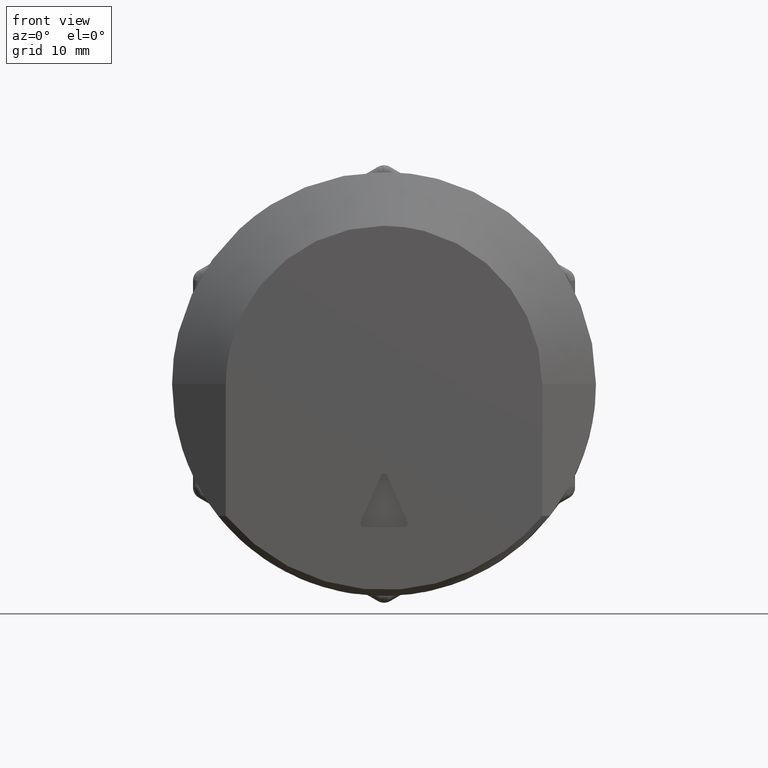
[diagram: clean part render]
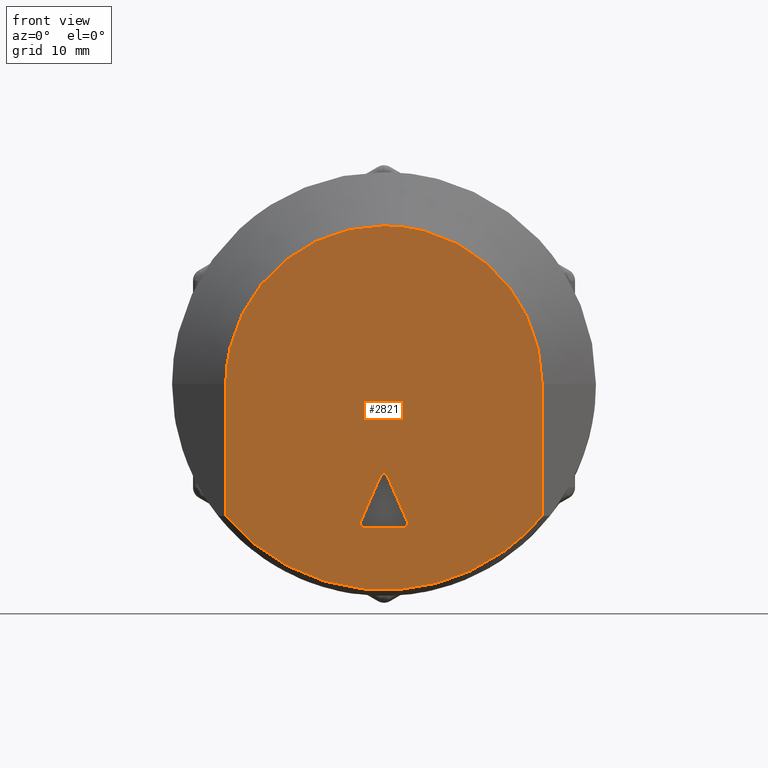
[diagram: same view with one face highlighted and labeled with its STEP entity id]
A machine part, front view. The second image highlights one B-rep face of the part: STEP entity #2821.
In plain terms, the highlighted face is a freeform B-spline surface patch.
Its self-contained STEP definition (entity closure, byte-faithful):
#2116=CARTESIAN_POINT('',(-9.299999999999999,13.250000000000000,-11.045361017187220));
#2117=VERTEX_POINT('',#2116);
#2126=CARTESIAN_POINT('',(-9.299999999999999,-13.250000000000000,-11.045361017187220));
#2127=VERTEX_POINT('',#2126);
#2135=CARTESIAN_POINT('',(-9.299999999999999,13.250000000000000,-11.045361017187220));
#2136=CARTESIAN_POINT('',(-9.300000000000003,12.569840543822110,-11.861449888856640));
#2137=CARTESIAN_POINT('',(-9.299999999999924,11.365986215028711,-13.060515676465720));
#2138=CARTESIAN_POINT('',(-9.300000000000098,9.369378172704799,-14.535890388570630));
#2139=CARTESIAN_POINT('',(-9.299999999999969,7.582760580092833,-15.542820916187020));
#2140=CARTESIAN_POINT('',(-9.300000000000015,5.614661896907975,-16.351895021904681));
#2141=CARTESIAN_POINT('',(-9.299999999999953,3.261530308551539,-17.012689585099739));
#2142=CARTESIAN_POINT('',(-9.300000000000122,0.434784939660100,-17.343060838527510));
#2143=CARTESIAN_POINT('',(-9.299999999999770,-2.560401974944150,-17.137710305447801));
#2144=CARTESIAN_POINT('',(-9.300000000000285,-5.017670287108514,-16.555382089036978));
#2145=CARTESIAN_POINT('',(-9.299999999999766,-7.154540982225449,-15.744520734324119));
#2146=CARTESIAN_POINT('',(-9.300000000000015,-8.863410294077530,-14.842113562978660));
#2147=CARTESIAN_POINT('',(-9.300000000000418,-11.043246982622200,-13.354864705123230));
#2148=CARTESIAN_POINT('',(-9.299999999999468,-12.393617321307030,-12.073169467746521));
#2149=CARTESIAN_POINT('',(-9.299999999999999,-13.250000000000000,-11.045361017187220));
#2150=B_SPLINE_CURVE_WITH_KNOTS('',3,(#2135,#2136,#2137,#2138,#2139,#2140,#2141,#2142,#2143,#2144,#2145,#2146,#2147,#2148,#2149),.UNSPECIFIED.,.F.,.U.,(4,1,1,1,1,1,1,1,1,1,1,1,4),(0.000000060714378,3.187070787264815,5.075743616284203,7.436555689923441,9.325207221906190,11.449936933231200,14.755100381473950,17.824124973170161,20.421013347742790,22.309665651849880,24.670489110627969,26.205008367933502,30.218385545113989),.UNSPECIFIED.);
#2151=EDGE_CURVE('',#2117,#2127,#2150,.T.);
#2243=CARTESIAN_POINT('',(-9.299999999999999,-0.275008526427933,-7.680123770529931));
#2244=VERTEX_POINT('',#2243);
#2245=CARTESIAN_POINT('',(-9.299999999999999,0.275008788728149,-7.680124372275680));
#2246=VERTEX_POINT('',#2245);
#2247=CARTESIAN_POINT('',(-9.299999999999999,-0.275008526427933,-7.680123770529931));
#2248=CARTESIAN_POINT('',(-9.300000000000008,-0.257669547557293,-7.640244585051421));
#2249=CARTESIAN_POINT('',(-9.300000000000001,-0.200914183203180,-7.562180599817098));
#2250=CARTESIAN_POINT('',(-9.299999999999995,-0.080930717936831,-7.501050208112583));
#2251=CARTESIAN_POINT('',(-9.299999999999931,0.062777922825498,-7.495813041218934));
#2252=CARTESIAN_POINT('',(-9.300000000000198,0.193308749133929,-7.553630754202930));
#2253=CARTESIAN_POINT('',(-9.299999999999740,0.256243360243274,-7.636910104583244));
#2254=CARTESIAN_POINT('',(-9.299999999999999,0.275008788728149,-7.680124372275680));
#2255=B_SPLINE_CURVE_WITH_KNOTS('',3,(#2247,#2248,#2249,#2250,#2251,#2252,#2253,#2254),.UNSPECIFIED.,.F.,.U.,(4,1,1,1,1,4),(0.000022041086801,0.130489570947344,0.282749086162072,0.391424546540639,0.554543581507987,0.695887161990948),.UNSPECIFIED.);
#2256=EDGE_CURVE('',#2244,#2246,#2255,.T.);
#2277=CARTESIAN_POINT('',(-9.299999999999999,-1.975008788728141,-11.580124372275760));
#2278=VERTEX_POINT('',#2277);
#2279=CARTESIAN_POINT('',(-9.299999999999999,-1.975008788728141,-11.580124372275760));
#2280=CARTESIAN_POINT('',(-9.299999999999999,-0.275008526427933,-7.680123770529931));
#2281=QUASI_UNIFORM_CURVE('',1,(#2279,#2280),.UNSPECIFIED.,.F.,.U.);
#2282=EDGE_CURVE('',#2278,#2244,#2281,.T.);
#2308=CARTESIAN_POINT('',(-9.299999999999999,-1.700000000000000,-12.000000000000201));
#2309=VERTEX_POINT('',#2308);
#2310=CARTESIAN_POINT('',(-9.299999999999999,-1.700000000000000,-12.000000000000201));
#2311=CARTESIAN_POINT('',(-9.300000000000003,-1.737161457340816,-12.000026654490069));
#2312=CARTESIAN_POINT('',(-9.299999999999990,-1.805256117896282,-11.987176064275570));
#2313=CARTESIAN_POINT('',(-9.300000000000004,-1.908299945353062,-11.927385282355750));
#2314=CARTESIAN_POINT('',(-9.299999999999997,-1.973247146140675,-11.840483967144239));
#2315=CARTESIAN_POINT('',(-9.299999999999997,-2.008204511282851,-11.714119132156521));
#2316=CARTESIAN_POINT('',(-9.299999999999999,-1.997470644558457,-11.631193756086301));
#2317=CARTESIAN_POINT('',(-9.299999999999999,-1.975008788728141,-11.580124372275760));
#2318=B_SPLINE_CURVE_WITH_KNOTS('',3,(#2310,#2311,#2312,#2313,#2314,#2315,#2316,#2317),.UNSPECIFIED.,.F.,.U.,(4,1,1,1,1,4),(0.000000462172343,0.111488570139202,0.204429858308104,0.353048998393862,0.427404780826879,0.594653143782486),.UNSPECIFIED.);
#2319=EDGE_CURVE('',#2309,#2278,#2318,.T.);
#2336=CARTESIAN_POINT('',(-9.299999999999999,1.700000000000000,-12.0));
#2337=VERTEX_POINT('',#2336);
#2338=CARTESIAN_POINT('',(-9.299999999999999,1.700000000000000,-12.0));
#2339=CARTESIAN_POINT('',(-9.299999999999999,-1.700000000000000,-12.000000000000201));
#2340=QUASI_UNIFORM_CURVE('',1,(#2338,#2339),.UNSPECIFIED.,.F.,.U.);
#2341=EDGE_CURVE('',#2337,#2309,#2340,.T.);
#2367=CARTESIAN_POINT('',(-9.299999999999999,1.975008788728165,-11.580124372275760));
#2368=VERTEX_POINT('',#2367);
#2369=CARTESIAN_POINT('',(-9.299999999999999,1.975008788728165,-11.580124372275760));
#2370=CARTESIAN_POINT('',(-9.300000000000011,1.989880202511224,-11.614174782107879));
#2371=CARTESIAN_POINT('',(-9.299999999999979,2.005316297728563,-11.681742969476559));
#2372=CARTESIAN_POINT('',(-9.300000000000004,1.991675513021413,-11.800083955878010));
#2373=CARTESIAN_POINT('',(-9.300000000000008,1.937966855883145,-11.894350433334180));
#2374=CARTESIAN_POINT('',(-9.299999999999976,1.836096448839257,-11.976888329121531));
#2375=CARTESIAN_POINT('',(-9.300000000000024,1.755791402771832,-12.000183609152710));
#2376=CARTESIAN_POINT('',(-9.299999999999999,1.700000000000000,-12.0));
#2377=B_SPLINE_CURVE_WITH_KNOTS('',3,(#2369,#2370,#2371,#2372,#2373,#2374,#2375,#2376),.UNSPECIFIED.,.F.,.U.,(4,1,1,1,1,4),(0.000000462171984,0.111488570138905,0.204429858307875,0.353048998393733,0.427404780826781,0.594653143782423),.UNSPECIFIED.);
#2378=EDGE_CURVE('',#2368,#2337,#2377,.T.);
#2395=CARTESIAN_POINT('',(-9.299999999999999,0.275008788728149,-7.680124372275680));
#2396=CARTESIAN_POINT('',(-9.299999999999999,1.975008788728165,-11.580124372275760));
#2397=QUASI_UNIFORM_CURVE('',1,(#2395,#2396),.UNSPECIFIED.,.F.,.U.);
#2398=EDGE_CURVE('',#2246,#2368,#2397,.T.);
#2413=CARTESIAN_POINT('',(-9.299999999999999,13.250000000000000,-2.433905E-015));
#2414=VERTEX_POINT('',#2413);
#2415=CARTESIAN_POINT('',(-9.299999999999999,13.250000000000000,-11.045361017187220));
#2416=CARTESIAN_POINT('',(-9.299999999999999,13.250000000000000,-2.433905E-015));
#2417=QUASI_UNIFORM_CURVE('',1,(#2415,#2416),.UNSPECIFIED.,.F.,.U.);
#2418=EDGE_CURVE('',#2117,#2414,#2417,.T.);
#2433=CARTESIAN_POINT('',(-9.299999999999999,-13.250000000000000,4.056509E-015));
#2434=VERTEX_POINT('',#2433);
#2435=CARTESIAN_POINT('',(-9.299999999999999,-13.250000000000000,4.056509E-015));
#2436=CARTESIAN_POINT('',(-9.299999999999999,-13.250000000000000,-11.045361017187220));
#2437=QUASI_UNIFORM_CURVE('',1,(#2435,#2436),.UNSPECIFIED.,.F.,.U.);
#2438=EDGE_CURVE('',#2434,#2127,#2437,.T.);
#2468=CARTESIAN_POINT('',(-9.299999999999999,0.000001232358252,13.249999999999940));
#2469=VERTEX_POINT('',#2468);
#2470=CARTESIAN_POINT('',(-9.299999999999999,0.000001232358252,13.249999999999940));
#2471=CARTESIAN_POINT('',(-9.300000000000003,1.056933942816228,13.250241939159331));
#2472=CARTESIAN_POINT('',(-9.299999999999988,2.818338529089590,13.038076955914910));
#2473=CARTESIAN_POINT('',(-9.299999999999999,4.909290075254574,12.347222611978991));
#2474=CARTESIAN_POINT('',(-9.299999999999972,6.450024874228683,11.606870720492839));
#2475=CARTESIAN_POINT('',(-9.299999999999997,8.059259216351414,10.594904980957610));
#2476=CARTESIAN_POINT('',(-9.299999999999995,9.727992567853736,9.110184646674039));
#2477=CARTESIAN_POINT('',(-9.300000000000066,11.155766621155299,7.257203172461264));
#2478=CARTESIAN_POINT('',(-9.299999999999661,12.289843212713681,5.151271870207066));
#2479=CARTESIAN_POINT('',(-9.300000000000841,13.062808457828750,2.737121226423890));
#2480=CARTESIAN_POINT('',(-9.299999999999338,13.250090593511320,0.894312349928282));
#2481=CARTESIAN_POINT('',(-9.299999999999999,13.250000000000000,-2.433905E-015));
#2482=B_SPLINE_CURVE_WITH_KNOTS('',3,(#2470,#2471,#2472,#2473,#2474,#2475,#2476,#2477,#2478,#2479,#2480,#2481),.UNSPECIFIED.,.F.,.U.,(4,1,1,1,1,1,1,1,1,4),(0.000000056498536,3.170737530708692,5.284572417116973,6.585392662875684,8.292720743223285,10.975639766367189,13.252072419086860,15.284606344395289,18.130147366655379,20.813083285092279),.UNSPECIFIED.);
#2483=EDGE_CURVE('',#2469,#2414,#2482,.T.);
#2485=CARTESIAN_POINT('',(-9.299999999999999,-13.250000000000000,4.056509E-015));
#2486=CARTESIAN_POINT('',(-9.299999999999994,-13.250261674880671,1.056940590250158));
#2487=CARTESIAN_POINT('',(-9.300000000000066,-13.047823872326781,2.737021499851848));
#2488=CARTESIAN_POINT('',(-9.299999999999896,-12.318773401365760,5.013943218158486));
#2489=CARTESIAN_POINT('',(-9.300000000000175,-11.533947844661490,6.597230792751647));
#2490=CARTESIAN_POINT('',(-9.299999999999645,-10.599304103080510,7.995958710563375));
#2491=CARTESIAN_POINT('',(-9.300000000000599,-9.585429846120217,9.200926651589828));
#2492=CARTESIAN_POINT('',(-9.299999999999827,-8.124485443060143,10.541571508031931));
#2493=CARTESIAN_POINT('',(-9.299999999999972,-6.484820603263851,11.615455136990080));
#2494=CARTESIAN_POINT('',(-9.300000000000068,-4.556991006462476,12.491288500791750));
#2495=CARTESIAN_POINT('',(-9.299999999999924,-2.493187096370489,13.089799477950301));
#2496=CARTESIAN_POINT('',(-9.300000000000015,-0.867211020944396,13.250101633506681));
#2497=CARTESIAN_POINT('',(-9.299999999999999,0.000001232358252,13.249999999999940));
#2498=B_SPLINE_CURVE_WITH_KNOTS('',3,(#2485,#2486,#2487,#2488,#2489,#2490,#2491,#2492,#2493,#2494,#2495,#2496,#2497),.UNSPECIFIED.,.F.,.U.,(4,1,1,1,1,1,1,1,1,1,4),(0.000000056365703,3.170737742318671,5.040668732304534,7.154502990935610,8.455320873680932,10.081368648733440,11.869935862637149,14.390295058362780,15.935019673049020,18.211467892253548,20.813084674249410),.UNSPECIFIED.);
#2499=EDGE_CURVE('',#2434,#2469,#2498,.T.);
#2801=CARTESIAN_POINT('',(-9.299999999999999,-14.573674948637860,-18.773496986922769));
#2802=CARTESIAN_POINT('',(-9.299999999999999,-14.573674948637860,14.773476807770219));
#2803=CARTESIAN_POINT('',(-9.299999999999999,14.573675659423250,-18.773496986922769));
#2804=CARTESIAN_POINT('',(-9.299999999999999,14.573675659423250,14.773476807770219));
#2805=B_SPLINE_SURFACE_WITH_KNOTS('',1,1,((#2801,#2803),(#2802,#2804)),.UNSPECIFIED.,.F.,.F.,.U.,(2,2),(2,2),(0.0,33.546973794692988),(0.0,29.147350608061110),.UNSPECIFIED.);
#2806=ORIENTED_EDGE('',*,*,#2418,.F.);
#2807=ORIENTED_EDGE('',*,*,#2151,.T.);
#2808=ORIENTED_EDGE('',*,*,#2438,.F.);
#2809=ORIENTED_EDGE('',*,*,#2499,.T.);
#2810=ORIENTED_EDGE('',*,*,#2483,.T.);
#2811=EDGE_LOOP('',(#2806,#2807,#2808,#2809,#2810));
#2812=FACE_OUTER_BOUND('',#2811,.T.);
#2813=ORIENTED_EDGE('',*,*,#2398,.F.);
#2814=ORIENTED_EDGE('',*,*,#2256,.F.);
#2815=ORIENTED_EDGE('',*,*,#2282,.F.);
#2816=ORIENTED_EDGE('',*,*,#2319,.F.);
#2817=ORIENTED_EDGE('',*,*,#2341,.F.);
#2818=ORIENTED_EDGE('',*,*,#2378,.F.);
#2819=EDGE_LOOP('',(#2813,#2814,#2815,#2816,#2817,#2818));
#2820=FACE_BOUND('',#2819,.T.);
#2821=ADVANCED_FACE('',(#2812,#2820),#2805,.T.);